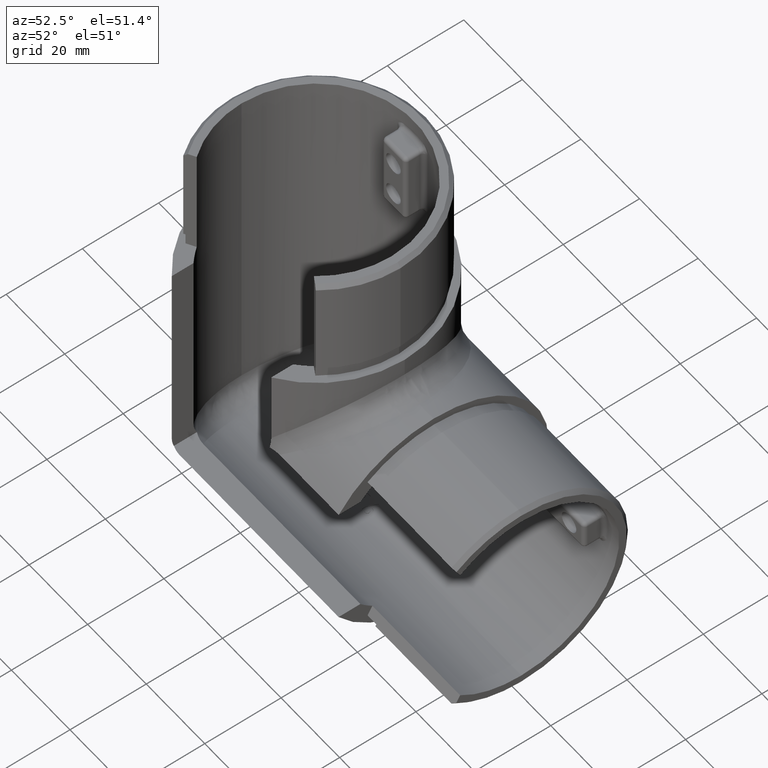
[diagram: clean part render]
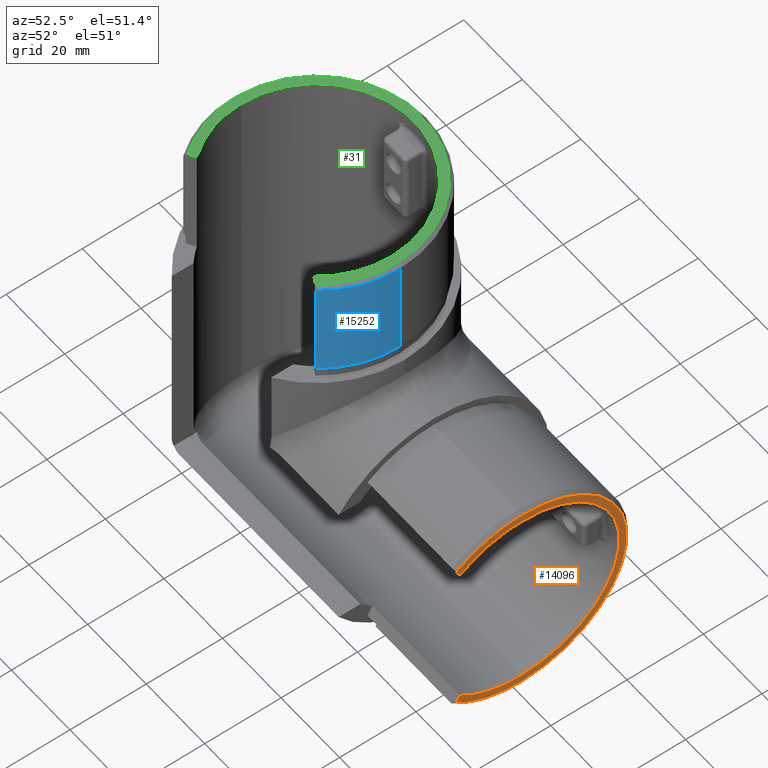
[diagram: same view with three faces highlighted in distinct colors, each labeled with its STEP entity id]
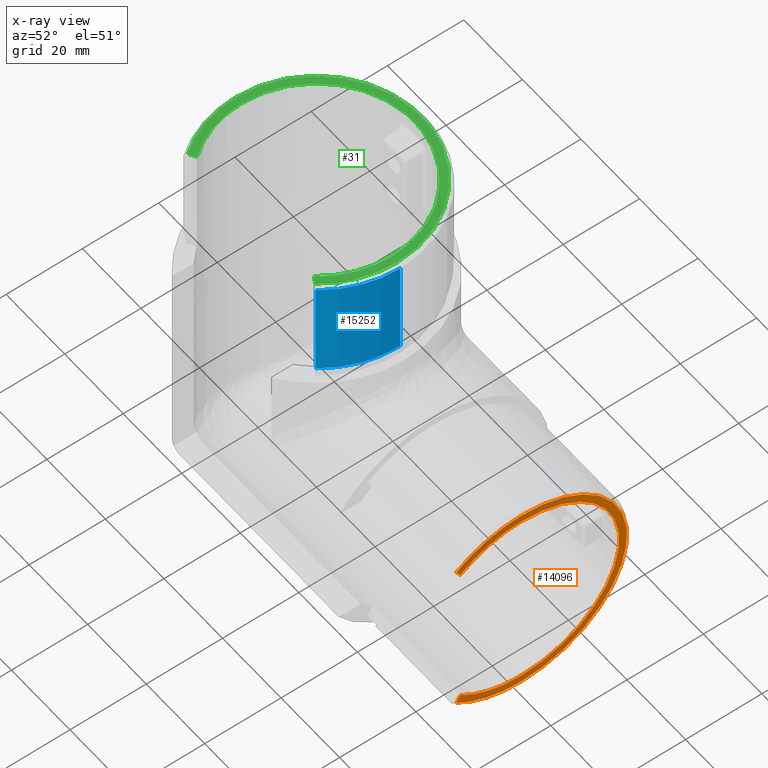
[diagram: x-ray of the same camera — body ghosted, the three highlighted faces saturated]
A machine part, auxiliary view with three faces highlighted in distinct colors.
The next image is the same camera in x-ray (body ghosted, the three faces saturated) — at least one of them is partly hidden behind the body in this view.
Their STEP definitions:

[orange] entity #14096 — the highlighted planar face has unit normal (1, 0, -0).
#226 = CARTESIAN_POINT ( 'NONE',  ( 70.00000000000001421, 3.141219039812958680E-15, -14.35000000000003340 ) ) ;
#285 = VERTEX_POINT ( 'NONE', #226 ) ;
#839 = DIRECTION ( 'NONE',  ( 1.000000000000000000, 0.000000000000000000, -2.220446049250312588E-16 ) ) ;
#1121 = ORIENTED_EDGE ( 'NONE', *, *, #17631, .F. ) ;
#1860 = CIRCLE ( 'NONE', #11446, 25.64999999999999503 ) ;
#1904 = CIRCLE ( 'NONE', #6950, 27.64999999999998792 ) ;
#1964 = EDGE_CURVE ( 'NONE', #11042, #18808, #15723, .T. ) ;
#2419 = DIRECTION ( 'NONE',  ( 1.922962686383562584E-16, 0.5000000000000006661, 0.8660254037844382635 ) ) ;
#2489 = AXIS2_PLACEMENT_3D ( 'NONE', #18198, #7929, #18328 ) ;
#2522 = VERTEX_POINT ( 'NONE', #5944 ) ;
#3242 = CARTESIAN_POINT ( 'NONE',  ( 70.00000000000000000, -16.05996575338813770, -20.00000000000002842 ) ) ;
#3339 = DIRECTION ( 'NONE',  ( 0.000000000000000000, 0.000000000000000000, 1.000000000000000000 ) ) ;
#3476 = CARTESIAN_POINT ( 'NONE',  ( 69.99999999999998579, -17.07091214643890353, -61.75101051649244965 ) ) ;
#3554 = VERTEX_POINT ( 'NONE', #10848 ) ;
#3865 = EDGE_CURVE ( 'NONE', #285, #18454, #14541, .T. ) ;
#4129 = VECTOR ( 'NONE', #4744, 1000.000000000000000 ) ;
#4744 = DIRECTION ( 'NONE',  ( 1.922962686383562584E-16, -0.5000000000000006661, 0.8660254037844382635 ) ) ;
#4782 = CARTESIAN_POINT ( 'NONE',  ( 70.00000000000000000, 0.000000000000000000, -40.00000000000002842 ) ) ;
#5299 = DIRECTION ( 'NONE',  ( 1.000000000000000000, 0.000000000000000000, -4.440892098500625176E-16 ) ) ;
#5833 = DIRECTION ( 'NONE',  ( 1.000000000000000000, 0.000000000000000000, -4.440892098500625176E-16 ) ) ;
#5944 = CARTESIAN_POINT ( 'NONE',  ( 69.99999999999998579, 0.000000000000000000, -65.65000000000003411 ) ) ;
#6317 = VECTOR ( 'NONE', #2419, 1000.000000000000000 ) ;
#6564 = CARTESIAN_POINT ( 'NONE',  ( 70.00000000000000000, 0.000000000000000000, -40.00000000000002842 ) ) ;
#6767 = CARTESIAN_POINT ( 'NONE',  ( 69.99999999999998579, -17.57580367071220806, -62.62550828884470633 ) ) ;
#6796 = DIRECTION ( 'NONE',  ( -5.019091431397635923E-16, 0.000000000000000000, -1.000000000000000000 ) ) ;
#6844 = EDGE_CURVE ( 'NONE', #3554, #11042, #1904, .T. ) ;
#6950 = AXIS2_PLACEMENT_3D ( 'NONE', #15686, #5299, #6796 ) ;
#7929 = DIRECTION ( 'NONE',  ( 1.000000000000000000, 0.000000000000000000, -4.440892098500625176E-16 ) ) ;
#8121 = LINE ( 'NONE', #3242, #4129 ) ;
#8217 = DIRECTION ( 'NONE',  ( -5.019091431397635923E-16, 0.000000000000000000, -1.000000000000000000 ) ) ;
#8728 = ORIENTED_EDGE ( 'NONE', *, *, #6844, .T. ) ;
#9039 = VERTEX_POINT ( 'NONE', #11308 ) ;
#9518 = CARTESIAN_POINT ( 'NONE',  ( 70.00000000000000000, -16.05996575338813770, -20.00000000000002842 ) ) ;
#10155 = AXIS2_PLACEMENT_3D ( 'NONE', #15894, #839, #14301 ) ;
#10696 = ORIENTED_EDGE ( 'NONE', *, *, #13049, .T. ) ;
#10848 = CARTESIAN_POINT ( 'NONE',  ( 69.99999999999998579, 3.447380739599796945E-15, -67.65000000000001990 ) ) ;
#10899 = AXIS2_PLACEMENT_3D ( 'NONE', #14139, #17119, #8217 ) ;
#11042 = VERTEX_POINT ( 'NONE', #12064 ) ;
#11244 = LINE ( 'NONE', #6767, #6317 ) ;
#11250 = ORIENTED_EDGE ( 'NONE', *, *, #18660, .F. ) ;
#11308 = CARTESIAN_POINT ( 'NONE',  ( 69.99999999999998579, -16.05996575338813770, -60.00000000000002842 ) ) ;
#11446 = AXIS2_PLACEMENT_3D ( 'NONE', #6564, #15661, #14185 ) ;
#11520 = ORIENTED_EDGE ( 'NONE', *, *, #13483, .F. ) ;
#12064 = CARTESIAN_POINT ( 'NONE',  ( 70.00000000000001421, 0.000000000000000000, -12.35000000000004761 ) ) ;
#12131 = CIRCLE ( 'NONE', #10899, 27.64999999999998792 ) ;
#12197 = DIRECTION ( 'NONE',  ( 1.000000000000000000, 0.000000000000000000, -4.440892098500625176E-16 ) ) ;
#12785 = PLANE ( 'NONE',  #10155 ) ;
#13049 = EDGE_CURVE ( 'NONE', #16079, #3554, #12131, .T. ) ;
#13483 = EDGE_CURVE ( 'NONE', #16079, #9039, #11244, .T. ) ;
#14096 = ADVANCED_FACE ( 'NONE', ( #18909 ), #12785, .T. ) ;
#14139 = CARTESIAN_POINT ( 'NONE',  ( 70.00000000000000000, 0.000000000000000000, -40.00000000000002842 ) ) ;
#14185 = DIRECTION ( 'NONE',  ( 0.000000000000000000, 0.000000000000000000, 1.000000000000000000 ) ) ;
#14208 = ORIENTED_EDGE ( 'NONE', *, *, #3865, .F. ) ;
#14301 = DIRECTION ( 'NONE',  ( 2.220446049250312588E-16, 0.000000000000000000, 1.000000000000000000 ) ) ;
#14541 = CIRCLE ( 'NONE', #18126, 25.64999999999999503 ) ;
#14731 = ORIENTED_EDGE ( 'NONE', *, *, #16069, .F. ) ;
#15632 = EDGE_LOOP ( 'NONE', ( #11520, #10696, #8728, #17400, #11250, #14208, #1121, #14731 ) ) ;
#15661 = DIRECTION ( 'NONE',  ( 1.000000000000000000, 0.000000000000000000, -4.440892098500625176E-16 ) ) ;
#15666 = CARTESIAN_POINT ( 'NONE',  ( 70.00000000000000000, -17.07091214643890353, -18.24898948350761430 ) ) ;
#15686 = CARTESIAN_POINT ( 'NONE',  ( 70.00000000000000000, 0.000000000000000000, -40.00000000000002842 ) ) ;
#15723 = CIRCLE ( 'NONE', #17383, 27.64999999999998792 ) ;
#15822 = CIRCLE ( 'NONE', #2489, 25.64999999999999503 ) ;
#15894 = CARTESIAN_POINT ( 'NONE',  ( 70.00000000000000000, 0.000000000000000000, -40.00000000000002842 ) ) ;
#16069 = EDGE_CURVE ( 'NONE', #9039, #2522, #15822, .T. ) ;
#16079 = VERTEX_POINT ( 'NONE', #3476 ) ;
#17119 = DIRECTION ( 'NONE',  ( 1.000000000000000000, 0.000000000000000000, -4.440892098500625176E-16 ) ) ;
#17383 = AXIS2_PLACEMENT_3D ( 'NONE', #17738, #5833, #17676 ) ;
#17400 = ORIENTED_EDGE ( 'NONE', *, *, #1964, .T. ) ;
#17631 = EDGE_CURVE ( 'NONE', #2522, #285, #1860, .T. ) ;
#17676 = DIRECTION ( 'NONE',  ( -5.019091431397635923E-16, 0.000000000000000000, -1.000000000000000000 ) ) ;
#17738 = CARTESIAN_POINT ( 'NONE',  ( 70.00000000000000000, 0.000000000000000000, -40.00000000000002842 ) ) ;
#18126 = AXIS2_PLACEMENT_3D ( 'NONE', #4782, #12197, #3339 ) ;
#18198 = CARTESIAN_POINT ( 'NONE',  ( 70.00000000000000000, 0.000000000000000000, -40.00000000000002842 ) ) ;
#18328 = DIRECTION ( 'NONE',  ( 0.000000000000000000, 0.000000000000000000, 1.000000000000000000 ) ) ;
#18454 = VERTEX_POINT ( 'NONE', #9518 ) ;
#18660 = EDGE_CURVE ( 'NONE', #18454, #18808, #8121, .T. ) ;
#18808 = VERTEX_POINT ( 'NONE', #15666 ) ;
#18909 = FACE_OUTER_BOUND ( 'NONE', #15632, .T. ) ;

[blue] entity #15252 — the highlighted cylindrical surface (partial cylindrical patch) has radius 28.65 mm, axis along (-0, -0, -1).
#562 = CARTESIAN_POINT ( 'NONE',  ( 0.000000000000000000, 0.000000000000000000, 30.00000000000000000 ) ) ;
#1086 = LINE ( 'NONE', #4442, #4315 ) ;
#1296 = VERTEX_POINT ( 'NONE', #8982 ) ;
#1418 = VECTOR ( 'NONE', #17503, 1000.000000000000000 ) ;
#1571 = ORIENTED_EDGE ( 'NONE', *, *, #15821, .T. ) ;
#1974 = EDGE_CURVE ( 'NONE', #3528, #2896, #1086, .T. ) ;
#2392 = FACE_OUTER_BOUND ( 'NONE', #16992, .T. ) ;
#2492 = DIRECTION ( 'NONE',  ( 1.000000000000000000, 0.000000000000000000, 0.000000000000000000 ) ) ;
#2782 = EDGE_CURVE ( 'NONE', #3528, #13567, #9663, .T. ) ;
#2896 = VERTEX_POINT ( 'NONE', #17826 ) ;
#3420 = CARTESIAN_POINT ( 'NONE',  ( 28.64999999999999858, 3.508613079557166886E-15, 28.99999999999998934 ) ) ;
#3528 = VERTEX_POINT ( 'NONE', #3420 ) ;
#3713 = DIRECTION ( 'NONE',  ( -0.000000000000000000, -0.000000000000000000, -1.000000000000000000 ) ) ;
#3900 = AXIS2_PLACEMENT_3D ( 'NONE', #7034, #15736, #2492 ) ;
#4315 = VECTOR ( 'NONE', #16338, 1000.000000000000000 ) ;
#4442 = CARTESIAN_POINT ( 'NONE',  ( 28.64999999999999858, 3.508613079557166886E-15, 30.00000000000000000 ) ) ;
#5382 = CYLINDRICAL_SURFACE ( 'NONE', #12933, 28.64999999999999858 ) ;
#5500 = AXIS2_PLACEMENT_3D ( 'NONE', #7286, #11760, #13267 ) ;
#6111 = ORIENTED_EDGE ( 'NONE', *, *, #1974, .F. ) ;
#7034 = CARTESIAN_POINT ( 'NONE',  ( 0.000000000000000000, 0.000000000000000000, 28.99999999999998934 ) ) ;
#7286 = CARTESIAN_POINT ( 'NONE',  ( 0.000000000000000000, 0.000000000000000000, 2.999999999999999112 ) ) ;
#8287 = CIRCLE ( 'NONE', #5500, 28.64999999999999858 ) ;
#8403 = LINE ( 'NONE', #17577, #1418 ) ;
#8982 = CARTESIAN_POINT ( 'NONE',  ( 22.62550828884467791, -17.57580367071220806, 2.999999999999999112 ) ) ;
#9587 = DIRECTION ( 'NONE',  ( -1.000000000000000000, 0.000000000000000000, 0.000000000000000000 ) ) ;
#9663 = CIRCLE ( 'NONE', #3900, 28.64999999999999858 ) ;
#10039 = EDGE_CURVE ( 'NONE', #2896, #1296, #8287, .T. ) ;
#11760 = DIRECTION ( 'NONE',  ( -0.000000000000000000, -0.000000000000000000, -1.000000000000000000 ) ) ;
#12933 = AXIS2_PLACEMENT_3D ( 'NONE', #562, #3713, #9587 ) ;
#13267 = DIRECTION ( 'NONE',  ( -1.000000000000000000, 0.000000000000000000, 0.000000000000000000 ) ) ;
#13567 = VERTEX_POINT ( 'NONE', #18791 ) ;
#15252 = ADVANCED_FACE ( 'NONE', ( #2392 ), #5382, .T. ) ;
#15736 = DIRECTION ( 'NONE',  ( 0.000000000000000000, 0.000000000000000000, -1.000000000000000000 ) ) ;
#15821 = EDGE_CURVE ( 'NONE', #13567, #1296, #8403, .T. ) ;
#16100 = ORIENTED_EDGE ( 'NONE', *, *, #2782, .T. ) ;
#16338 = DIRECTION ( 'NONE',  ( -0.000000000000000000, -0.000000000000000000, -1.000000000000000000 ) ) ;
#16992 = EDGE_LOOP ( 'NONE', ( #6111, #16100, #1571, #19066 ) ) ;
#17503 = DIRECTION ( 'NONE',  ( -0.000000000000000000, -0.000000000000000000, -1.000000000000000000 ) ) ;
#17577 = CARTESIAN_POINT ( 'NONE',  ( 22.62550828884467791, -17.57580367071220806, 30.00000000000000000 ) ) ;
#17826 = CARTESIAN_POINT ( 'NONE',  ( 28.64999999999999858, 3.508613079557166886E-15, 2.999999999999999112 ) ) ;
#18791 = CARTESIAN_POINT ( 'NONE',  ( 22.62550828884467791, -17.57580367071220806, 28.99999999999998934 ) ) ;
#19066 = ORIENTED_EDGE ( 'NONE', *, *, #10039, .F. ) ;

[green] entity #31 — the highlighted planar face has unit normal (0, 0, 1).
#31 = ADVANCED_FACE ( 'NONE', ( #10270 ), #13875, .T. ) ;
#406 = CARTESIAN_POINT ( 'NONE',  ( 20.00000000000000000, -16.05996575338813770, 30.00000000000000000 ) ) ;
#1043 = VERTEX_POINT ( 'NONE', #15693 ) ;
#1268 = EDGE_LOOP ( 'NONE', ( #9226, #8789, #8288, #2752, #13658, #5128, #7804, #8783 ) ) ;
#1440 = DIRECTION ( 'NONE',  ( 1.000000000000000000, 0.000000000000000000, 0.000000000000000000 ) ) ;
#1457 = AXIS2_PLACEMENT_3D ( 'NONE', #4348, #8849, #9331 ) ;
#1616 = DIRECTION ( 'NONE',  ( 0.8660254037844382635, 0.5000000000000006661, 0.000000000000000000 ) ) ;
#1734 = EDGE_CURVE ( 'NONE', #1043, #17357, #17605, .T. ) ;
#2614 = AXIS2_PLACEMENT_3D ( 'NONE', #10530, #14789, #3053 ) ;
#2737 = DIRECTION ( 'NONE',  ( 1.000000000000000000, 0.000000000000000000, 0.000000000000000000 ) ) ;
#2752 = ORIENTED_EDGE ( 'NONE', *, *, #14605, .T. ) ;
#3053 = DIRECTION ( 'NONE',  ( 1.000000000000000000, 0.000000000000000000, 0.000000000000000000 ) ) ;
#3113 = CARTESIAN_POINT ( 'NONE',  ( 27.64999999999998792, 3.447380739599798523E-15, 30.00000000000000000 ) ) ;
#3123 = LINE ( 'NONE', #5839, #17093 ) ;
#3605 = DIRECTION ( 'NONE',  ( -0.000000000000000000, -0.000000000000000000, -1.000000000000000000 ) ) ;
#4348 = CARTESIAN_POINT ( 'NONE',  ( 0.000000000000000000, 0.000000000000000000, 30.00000000000000000 ) ) ;
#4709 = VERTEX_POINT ( 'NONE', #14537 ) ;
#4790 = CIRCLE ( 'NONE', #2614, 27.64999999999998792 ) ;
#4935 = VERTEX_POINT ( 'NONE', #3113 ) ;
#4980 = CARTESIAN_POINT ( 'NONE',  ( 0.000000000000000000, 0.000000000000000000, 30.00000000000000000 ) ) ;
#4998 = DIRECTION ( 'NONE',  ( 1.000000000000000000, 0.000000000000000000, 0.000000000000000000 ) ) ;
#5128 = ORIENTED_EDGE ( 'NONE', *, *, #1734, .T. ) ;
#5839 = CARTESIAN_POINT ( 'NONE',  ( -22.62550828884467791, -17.57580367071220806, 30.00000000000000000 ) ) ;
#5865 = DIRECTION ( 'NONE',  ( 1.000000000000000000, 0.000000000000000000, 0.000000000000000000 ) ) ;
#6330 = DIRECTION ( 'NONE',  ( 1.000000000000000000, 0.000000000000000000, -0.000000000000000000 ) ) ;
#6358 = VERTEX_POINT ( 'NONE', #18208 ) ;
#6786 = CARTESIAN_POINT ( 'NONE',  ( -27.64999999999998792, 0.000000000000000000, 30.00000000000000000 ) ) ;
#6927 = CARTESIAN_POINT ( 'NONE',  ( 25.64999999999999503, 3.141219039812960258E-15, 30.00000000000000000 ) ) ;
#7078 = VERTEX_POINT ( 'NONE', #6927 ) ;
#7804 = ORIENTED_EDGE ( 'NONE', *, *, #18807, .T. ) ;
#8213 = EDGE_CURVE ( 'NONE', #18624, #4709, #10166, .T. ) ;
#8288 = ORIENTED_EDGE ( 'NONE', *, *, #9705, .T. ) ;
#8414 = AXIS2_PLACEMENT_3D ( 'NONE', #12403, #3605, #4998 ) ;
#8550 = CIRCLE ( 'NONE', #9318, 27.64999999999998792 ) ;
#8557 = CARTESIAN_POINT ( 'NONE',  ( -25.64999999999999503, 0.000000000000000000, 30.00000000000000000 ) ) ;
#8612 = EDGE_CURVE ( 'NONE', #4709, #4935, #8550, .T. ) ;
#8622 = CARTESIAN_POINT ( 'NONE',  ( 20.00000000000000000, -16.05996575338813770, 30.00000000000000000 ) ) ;
#8783 = ORIENTED_EDGE ( 'NONE', *, *, #13129, .T. ) ;
#8789 = ORIENTED_EDGE ( 'NONE', *, *, #8612, .T. ) ;
#8849 = DIRECTION ( 'NONE',  ( 0.000000000000000000, 0.000000000000000000, 1.000000000000000000 ) ) ;
#9226 = ORIENTED_EDGE ( 'NONE', *, *, #8213, .T. ) ;
#9318 = AXIS2_PLACEMENT_3D ( 'NONE', #19237, #10321, #1440 ) ;
#9331 = DIRECTION ( 'NONE',  ( 1.000000000000000000, 0.000000000000000000, 0.000000000000000000 ) ) ;
#9468 = AXIS2_PLACEMENT_3D ( 'NONE', #4980, #15357, #6330 ) ;
#9705 = EDGE_CURVE ( 'NONE', #4935, #11531, #4790, .T. ) ;
#10166 = LINE ( 'NONE', #8622, #11106 ) ;
#10270 = FACE_OUTER_BOUND ( 'NONE', #1268, .T. ) ;
#10321 = DIRECTION ( 'NONE',  ( 0.000000000000000000, 0.000000000000000000, 1.000000000000000000 ) ) ;
#10530 = CARTESIAN_POINT ( 'NONE',  ( 0.000000000000000000, 0.000000000000000000, 30.00000000000000000 ) ) ;
#10927 = EDGE_CURVE ( 'NONE', #6358, #1043, #3123, .T. ) ;
#10991 = CIRCLE ( 'NONE', #1457, 27.64999999999998792 ) ;
#11106 = VECTOR ( 'NONE', #13237, 1000.000000000000000 ) ;
#11221 = CIRCLE ( 'NONE', #15249, 25.64999999999999503 ) ;
#11531 = VERTEX_POINT ( 'NONE', #6786 ) ;
#12403 = CARTESIAN_POINT ( 'NONE',  ( 0.000000000000000000, 0.000000000000000000, 30.00000000000000000 ) ) ;
#12712 = AXIS2_PLACEMENT_3D ( 'NONE', #18990, #16106, #2737 ) ;
#13129 = EDGE_CURVE ( 'NONE', #7078, #18624, #11221, .T. ) ;
#13237 = DIRECTION ( 'NONE',  ( 0.8660254037844382635, -0.5000000000000006661, 0.000000000000000000 ) ) ;
#13658 = ORIENTED_EDGE ( 'NONE', *, *, #10927, .T. ) ;
#13875 = PLANE ( 'NONE',  #9468 ) ;
#14537 = CARTESIAN_POINT ( 'NONE',  ( 21.75101051649242123, -17.07091214643890709, 30.00000000000000000 ) ) ;
#14605 = EDGE_CURVE ( 'NONE', #11531, #6358, #10991, .T. ) ;
#14714 = DIRECTION ( 'NONE',  ( -0.000000000000000000, -0.000000000000000000, -1.000000000000000000 ) ) ;
#14789 = DIRECTION ( 'NONE',  ( 0.000000000000000000, 0.000000000000000000, 1.000000000000000000 ) ) ;
#15249 = AXIS2_PLACEMENT_3D ( 'NONE', #17894, #14714, #5865 ) ;
#15357 = DIRECTION ( 'NONE',  ( 0.000000000000000000, 0.000000000000000000, 1.000000000000000000 ) ) ;
#15693 = CARTESIAN_POINT ( 'NONE',  ( -20.00000000000000000, -16.05996575338813770, 30.00000000000000000 ) ) ;
#16106 = DIRECTION ( 'NONE',  ( -0.000000000000000000, -0.000000000000000000, -1.000000000000000000 ) ) ;
#17093 = VECTOR ( 'NONE', #1616, 1000.000000000000000 ) ;
#17357 = VERTEX_POINT ( 'NONE', #8557 ) ;
#17605 = CIRCLE ( 'NONE', #8414, 25.64999999999999503 ) ;
#17867 = CIRCLE ( 'NONE', #12712, 25.64999999999999503 ) ;
#17894 = CARTESIAN_POINT ( 'NONE',  ( 0.000000000000000000, 0.000000000000000000, 30.00000000000000000 ) ) ;
#18208 = CARTESIAN_POINT ( 'NONE',  ( -21.75101051649242123, -17.07091214643890709, 30.00000000000000000 ) ) ;
#18624 = VERTEX_POINT ( 'NONE', #406 ) ;
#18807 = EDGE_CURVE ( 'NONE', #17357, #7078, #17867, .T. ) ;
#18990 = CARTESIAN_POINT ( 'NONE',  ( 0.000000000000000000, 0.000000000000000000, 30.00000000000000000 ) ) ;
#19237 = CARTESIAN_POINT ( 'NONE',  ( 0.000000000000000000, 0.000000000000000000, 30.00000000000000000 ) ) ;